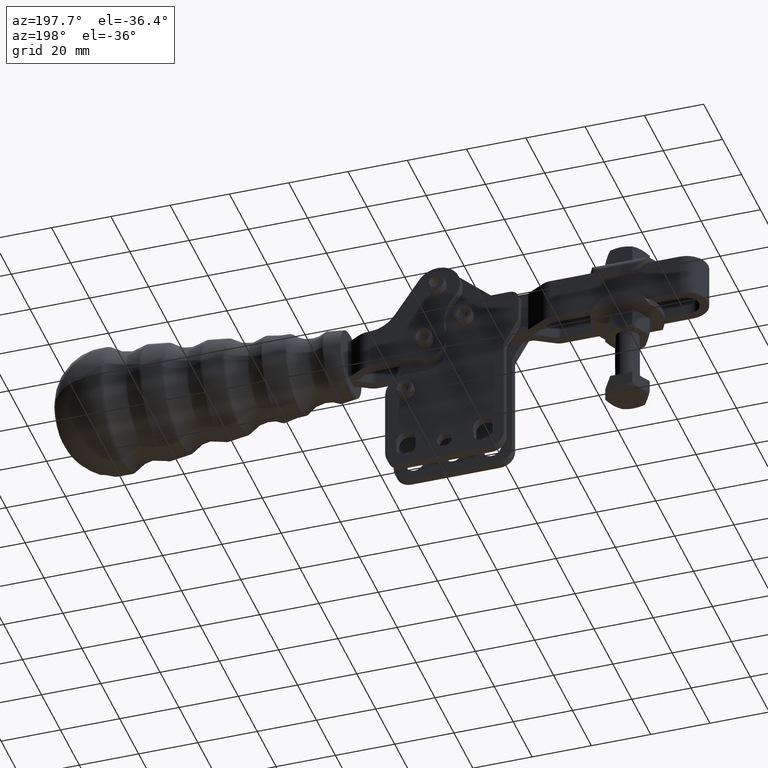
[diagram: clean part render]
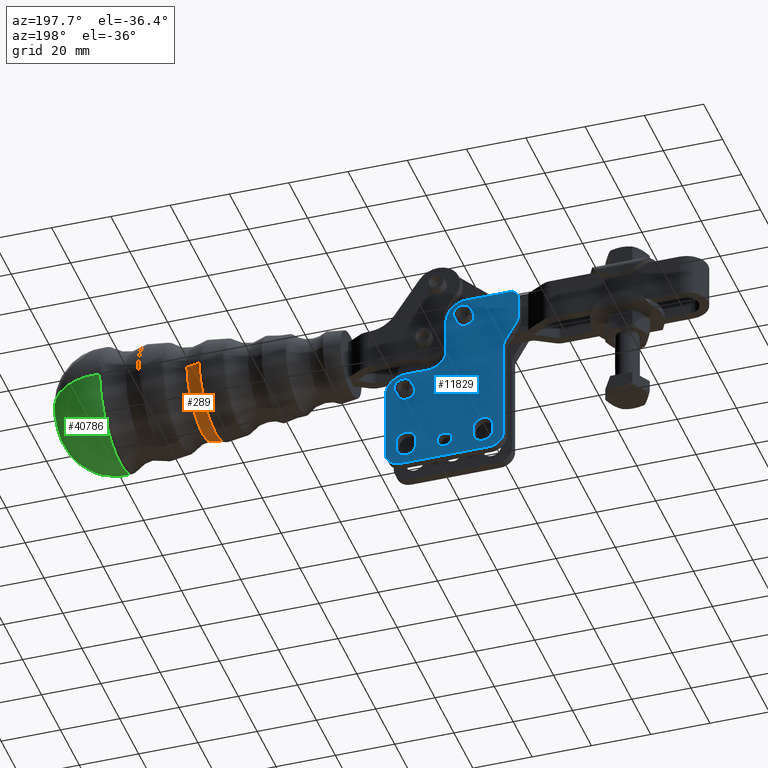
[diagram: same view with three faces highlighted in distinct colors, each labeled with its STEP entity id]
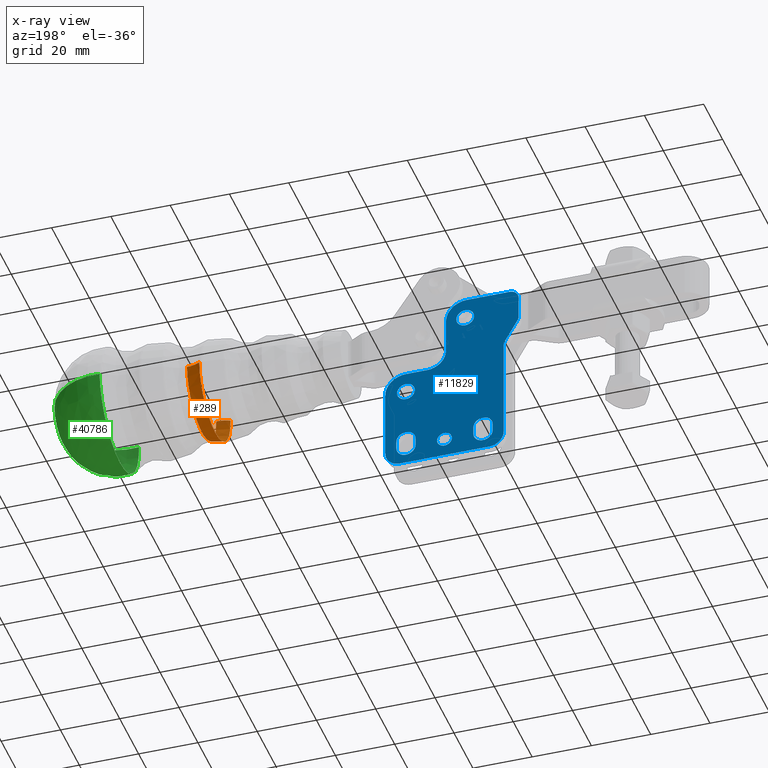
[diagram: x-ray of the same camera — body ghosted, the three highlighted faces saturated]
A machine part, auxiliary view with three faces highlighted in distinct colors.
The next image is the same camera in x-ray (body ghosted, the three faces saturated) — at least one of them is partly hidden behind the body in this view.
Their STEP definitions:

[orange] entity #289 — the highlighted face is a freeform B-spline surface patch.
#60=CARTESIAN_POINT('',(157.993631388735930,-82.821630872737188,-0.144579473590607));
#61=VERTEX_POINT('',#60);
#69=CARTESIAN_POINT('',(157.993631388735930,-49.757288660900720,-0.144579473590599));
#70=VERTEX_POINT('',#69);
#211=CARTESIAN_POINT('',(157.802503196733650,-82.919749444464216,-0.142369400126812));
#212=CARTESIAN_POINT('',(160.080409310927080,-81.719257166994055,-0.168709521922796));
#213=CARTESIAN_POINT('',(162.654790444104660,-81.768322446766689,-0.198477874610673));
#214=CARTESIAN_POINT('',(157.994791443556070,-82.919749444464216,16.486808570913386));
#215=CARTESIAN_POINT('',(160.258816828078920,-81.719257166994055,15.260056422515987));
#216=CARTESIAN_POINT('',(162.833765280095210,-81.768322446766689,15.279350069670171));
#217=CARTESIAN_POINT('',(157.994791443556070,-66.289459766818950,16.486808570913389));
#218=CARTESIAN_POINT('',(160.258816828078920,-66.289459766818950,15.260056422515991));
#219=CARTESIAN_POINT('',(162.833765280095210,-66.289459766818950,15.279350069670173));
#220=CARTESIAN_POINT('',(157.994791443556070,-49.659170089173685,16.486808570913386));
#221=CARTESIAN_POINT('',(160.258816828078920,-50.859662366643846,15.260056422515987));
#222=CARTESIAN_POINT('',(162.833765280095210,-50.810597086871212,15.279350069670171));
#223=CARTESIAN_POINT('',(157.802503196733650,-49.659170089173685,-0.142369400126812));
#224=CARTESIAN_POINT('',(160.080409310927080,-50.859662366643846,-0.168709521922796));
#225=CARTESIAN_POINT('',(162.654790444104660,-50.810597086871212,-0.198477874610672));
#226=CARTESIAN_POINT('',(157.610214949911240,-49.659170089173685,-16.771547371167006));
#227=CARTESIAN_POINT('',(159.902001793775240,-50.859662366643846,-15.597475466361580));
#228=CARTESIAN_POINT('',(162.475815608114120,-50.810597086871212,-15.676305818891512));
#229=CARTESIAN_POINT('',(157.610214949911240,-66.289459766818950,-16.771547371167010));
#230=CARTESIAN_POINT('',(159.902001793775240,-66.289459766818950,-15.597475466361583));
#231=CARTESIAN_POINT('',(162.475815608114120,-66.289459766818950,-15.676305818891517));
#232=CARTESIAN_POINT('',(157.610214949911240,-82.919749444464216,-16.771547371167006));
#233=CARTESIAN_POINT('',(159.902001793775240,-81.719257166994055,-15.597475466361580));
#234=CARTESIAN_POINT('',(162.475815608114120,-81.768322446766689,-15.676305818891512));
#235=CARTESIAN_POINT('',(157.802503196733650,-82.919749444464216,-0.142369400126812));
#236=CARTESIAN_POINT('',(160.080409310927080,-81.719257166994055,-0.168709521922796));
#237=CARTESIAN_POINT('',(162.654790444104660,-81.768322446766689,-0.198477874610673));
#245=(BOUNDED_SURFACE()B_SPLINE_SURFACE(2,2,((#211,#214,#217,#220,#223,#226,#229,#232,#235),(#212,#215,#218,#221,#224,#227,#230,#233,#236),(#213,#216,#219,#222,#225,#228,#231,#234,#237)),.UNSPECIFIED.,.F.,.T.,.U.)B_SPLINE_SURFACE_WITH_KNOTS((3,3),(3,2,2,2,3),(2.656594371723186,3.160648130941323),(0.0,1.570796326794897,3.141592653589793,4.712388980384690,6.283185307179586),.UNSPECIFIED.)GEOMETRIC_REPRESENTATION_ITEM()RATIONAL_B_SPLINE_SURFACE(((1.0,0.707106781186548,1.0,0.707106781186548,1.0,0.707106781186548,1.0,0.707106781186548,1.0),(0.968408973751604,0.684768552301664,0.968408973751604,0.684768552301664,0.968408973751604,0.684768552301664,0.968408973751604,0.684768552301664,0.968408973751604),(1.0,0.707106781186548,1.0,0.707106781186548,1.0,0.707106781186548,1.0,0.707106781186548,1.0)))REPRESENTATION_ITEM('')SURFACE());
#246=CARTESIAN_POINT('',(162.464259939967890,-81.766506945617948,-0.196274712393611));
#247=VERTEX_POINT('',#246);
#248=CARTESIAN_POINT('',(162.464259939967860,-50.812412588019960,-0.196274712393604));
#249=VERTEX_POINT('',#248);
#250=CARTESIAN_POINT('',(162.464259939967860,-66.289459766818950,-0.196274712393607));
#251=DIRECTION('',(0.999933151699302,1.726863E-016,-0.011562531414043));
#252=DIRECTION('',(0.011562531414043,0.0,0.999933151699302));
#253=AXIS2_PLACEMENT_3D('',#250,#251,#252);
#254=CIRCLE('',#253,15.477047178798989);
#255=EDGE_CURVE('',#247,#249,#254,.T.);
#256=ORIENTED_EDGE('',*,*,#255,.F.);
#257=CARTESIAN_POINT('',(162.464259939967860,-91.766506945617948,-0.196274712393614));
#258=DIRECTION('',(0.011562531414043,0.0,0.999933151699302));
#259=DIRECTION('',(0.0,-1.0,0.0));
#260=AXIS2_PLACEMENT_3D('',#257,#258,#259);
#261=CIRCLE('',#260,10.0);
#262=EDGE_CURVE('',#247,#61,#261,.T.);
#263=ORIENTED_EDGE('',*,*,#262,.T.);
#264=CARTESIAN_POINT('',(157.802477640981410,-66.289459766818950,-16.675645431963552));
#265=VERTEX_POINT('',#264);
#266=CARTESIAN_POINT('',(157.993631388735930,-66.289459766818950,-0.144579473590602));
#267=DIRECTION('',(-0.999933151699302,-1.726863E-016,0.011562531414043));
#268=DIRECTION('',(0.011562531414043,-2.514365E-016,0.999933151699302));
#269=AXIS2_PLACEMENT_3D('',#266,#267,#268);
#270=CIRCLE('',#269,16.532171105918227);
#271=EDGE_CURVE('',#265,#61,#270,.T.);
#272=ORIENTED_EDGE('',*,*,#271,.F.);
#273=CARTESIAN_POINT('',(157.993631388735930,-66.289459766818950,-0.144579473590602));
#274=DIRECTION('',(-0.999933151699302,-1.726863E-016,0.011562531414043));
#275=DIRECTION('',(0.011562531414043,-2.514365E-016,0.999933151699302));
#276=AXIS2_PLACEMENT_3D('',#273,#274,#275);
#277=CIRCLE('',#276,16.532171105918227);
#278=EDGE_CURVE('',#70,#265,#277,.T.);
#279=ORIENTED_EDGE('',*,*,#278,.F.);
#280=CARTESIAN_POINT('',(162.464259939967860,-40.812412588019960,-0.196274712393601));
#281=DIRECTION('',(0.011562531414043,0.0,0.999933151699302));
#282=DIRECTION('',(0.0,1.0,0.0));
#283=AXIS2_PLACEMENT_3D('',#280,#281,#282);
#284=CIRCLE('',#283,10.0);
#285=EDGE_CURVE('',#70,#249,#284,.T.);
#286=ORIENTED_EDGE('',*,*,#285,.T.);
#287=EDGE_LOOP('',(#256,#263,#272,#279,#286));
#288=FACE_OUTER_BOUND('',#287,.T.);
#289=ADVANCED_FACE('',(#288),#245,.T.);

[blue] entity #11829 — the highlighted planar face has unit normal (0, 1, 0).
#2083=CARTESIAN_POINT('',(88.601346938202227,-60.259744455112873,-19.295722518266246));
#2084=VERTEX_POINT('',#2083);
#2093=CARTESIAN_POINT('',(94.601346938202241,-60.259744455112880,-19.295722518266494));
#2094=VERTEX_POINT('',#2093);
#2095=CARTESIAN_POINT('',(91.601346938202241,-60.259744455112873,-19.295722518266210));
#2096=DIRECTION('',(0.0,-1.0,0.0));
#2097=DIRECTION('',(1.0,0.0,0.0));
#2098=AXIS2_PLACEMENT_3D('',#2095,#2096,#2097);
#2099=CIRCLE('',#2098,3.000000000000000);
#2100=EDGE_CURVE('',#2094,#2084,#2099,.T.);
#2383=CARTESIAN_POINT('',(68.601346938201914,-60.259744455112866,5.704277481733509));
#2384=VERTEX_POINT('',#2383);
#2393=CARTESIAN_POINT('',(74.601346938201914,-60.259744455112866,5.704277481733519));
#2394=VERTEX_POINT('',#2393);
#2395=CARTESIAN_POINT('',(71.601346938201914,-60.259744455112866,5.704277481733544));
#2396=DIRECTION('',(0.0,-1.0,0.0));
#2397=DIRECTION('',(1.0,0.0,0.0));
#2398=AXIS2_PLACEMENT_3D('',#2395,#2396,#2397);
#2399=CIRCLE('',#2398,3.000000000000000);
#2400=EDGE_CURVE('',#2394,#2384,#2399,.T.);
#8156=CARTESIAN_POINT('',(76.101346938202482,-60.259744455112866,-41.245722518266383));
#8157=VERTEX_POINT('',#8156);
#8166=CARTESIAN_POINT('',(81.101346938202482,-60.259744455112873,-41.245722518266334));
#8167=VERTEX_POINT('',#8166);
#8168=CARTESIAN_POINT('',(78.601346938202482,-60.259744455112873,-41.245722518266355));
#8169=DIRECTION('',(0.0,-1.0,0.0));
#8170=DIRECTION('',(-1.0,0.0,0.0));
#8171=AXIS2_PLACEMENT_3D('',#8168,#8169,#8170);
#8172=CIRCLE('',#8171,2.500000000000000);
#8173=EDGE_CURVE('',#8167,#8157,#8172,.T.);
#8200=CARTESIAN_POINT('',(63.303249899346227,-60.259744455112866,-43.543819557122831));
#8201=VERTEX_POINT('',#8200);
#8217=CARTESIAN_POINT('',(68.851346938202482,-60.259744455112873,-41.245722518266483));
#8218=VERTEX_POINT('',#8217);
#8225=CARTESIAN_POINT('',(65.601346938202482,-60.259744455112873,-41.245722518266525));
#8226=DIRECTION('',(1.469386E-016,1.0,-1.469386E-016));
#8227=DIRECTION('',(0.707106781186557,-2.078026E-016,-0.707106781186538));
#8228=AXIS2_PLACEMENT_3D('',#8225,#8226,#8227);
#8229=CIRCLE('',#8228,3.250000000000000);
#8230=EDGE_CURVE('',#8218,#8201,#8229,.T.);
#8242=CARTESIAN_POINT('',(89.303249899346213,-60.259744455112873,-43.543819557122518));
#8243=VERTEX_POINT('',#8242);
#8259=CARTESIAN_POINT('',(94.851346938202482,-60.259744455112873,-41.245722518266163));
#8260=VERTEX_POINT('',#8259);
#8267=CARTESIAN_POINT('',(91.601346938202468,-60.259744455112873,-41.245722518266206));
#8268=DIRECTION('',(1.469386E-016,1.0,-1.469386E-016));
#8269=DIRECTION('',(0.707106781186557,-2.078026E-016,-0.707106781186538));
#8270=AXIS2_PLACEMENT_3D('',#8267,#8268,#8269);
#8271=CIRCLE('',#8270,3.250000000000000);
#8272=EDGE_CURVE('',#8260,#8243,#8271,.T.);
#8284=CARTESIAN_POINT('',(89.303249899346142,-60.259744455112873,-36.447625479409957));
#8285=VERTEX_POINT('',#8284);
#8301=CARTESIAN_POINT('',(88.351346938202440,-60.259744455112873,-38.745722518266248));
#8302=VERTEX_POINT('',#8301);
#8309=CARTESIAN_POINT('',(91.601346938202454,-60.259744455112873,-38.745722518266206));
#8310=DIRECTION('',(1.469386E-016,1.0,-1.469386E-016));
#8311=DIRECTION('',(-0.707106781186557,2.078026E-016,0.707106781186538));
#8312=AXIS2_PLACEMENT_3D('',#8309,#8310,#8311);
#8313=CIRCLE('',#8312,3.250000000000000);
#8314=EDGE_CURVE('',#8302,#8285,#8313,.T.);
#8326=CARTESIAN_POINT('',(63.303249899346142,-60.259744455112866,-36.447625479410270));
#8327=VERTEX_POINT('',#8326);
#8343=CARTESIAN_POINT('',(62.351346938202454,-60.259744455112866,-38.745722518266561));
#8344=VERTEX_POINT('',#8343);
#8351=CARTESIAN_POINT('',(65.601346938202454,-60.259744455112873,-38.745722518266518));
#8352=DIRECTION('',(1.469386E-016,1.000000000000000,-1.469386E-016));
#8353=DIRECTION('',(-0.707106781186557,2.078026E-016,0.707106781186538));
#8354=AXIS2_PLACEMENT_3D('',#8351,#8352,#8353);
#8355=CIRCLE('',#8354,3.250000000000000);
#8356=EDGE_CURVE('',#8344,#8327,#8355,.T.);
#8366=CARTESIAN_POINT('',(60.065813032269816,-60.259744455112866,-46.081256424199331));
#8367=VERTEX_POINT('',#8366);
#8376=CARTESIAN_POINT('',(63.601346938202568,-60.259744455112866,-47.545722518266551));
#8377=VERTEX_POINT('',#8376);
#8378=CARTESIAN_POINT('',(63.601346938202504,-60.259744455112866,-42.545722518266551));
#8379=DIRECTION('',(-1.393444E-016,-1.000000000000000,-1.393444E-016));
#8380=DIRECTION('',(-0.707106781186539,1.970627E-016,-0.707106781186556));
#8381=AXIS2_PLACEMENT_3D('',#8378,#8379,#8380);
#8382=CIRCLE('',#8381,4.999999999999999);
#8383=EDGE_CURVE('',#8367,#8377,#8382,.T.);
#8408=CARTESIAN_POINT('',(97.136880844135277,-60.259744455112880,-46.081256424198870));
#8409=VERTEX_POINT('',#8408);
#8418=CARTESIAN_POINT('',(98.601346938202497,-60.259744455112880,-42.545722518266118));
#8419=VERTEX_POINT('',#8418);
#8420=CARTESIAN_POINT('',(93.601346938202497,-60.259744455112873,-42.545722518266174));
#8421=DIRECTION('',(-1.469386E-016,-1.0,1.469386E-016));
#8422=DIRECTION('',(0.707106781186557,-2.078026E-016,-0.707106781186539));
#8423=AXIS2_PLACEMENT_3D('',#8420,#8421,#8422);
#8424=CIRCLE('',#8423,4.999999999999999);
#8425=EDGE_CURVE('',#8409,#8419,#8424,.T.);
#8450=CARTESIAN_POINT('',(96.551094406508000,-60.259744455112873,-14.345975049960309));
#8451=VERTEX_POINT('',#8450);
#8460=CARTESIAN_POINT('',(91.601346938202127,-60.259744455112873,-12.295722518266196));
#8461=VERTEX_POINT('',#8460);
#8462=CARTESIAN_POINT('',(91.601346938202227,-60.259744455112873,-19.295722518266203));
#8463=DIRECTION('',(-1.393444E-016,-1.0,-1.393444E-016));
#8464=DIRECTION('',(0.707106781186539,-1.970627E-016,0.707106781186556));
#8465=AXIS2_PLACEMENT_3D('',#8462,#8463,#8464);
#8466=CIRCLE('',#8465,7.000000000000001);
#8467=EDGE_CURVE('',#8451,#8461,#8466,.T.);
#8494=CARTESIAN_POINT('',(79.931929555786198,-60.259744455112866,-10.465139900682278));
#8495=VERTEX_POINT('',#8494);
#8511=CARTESIAN_POINT('',(84.351346938202141,-60.259744455112873,-12.295722518266295));
#8512=VERTEX_POINT('',#8511);
#8519=CARTESIAN_POINT('',(84.351346938202056,-60.259744455112873,-6.045722518266294));
#8520=DIRECTION('',(1.393444E-016,1.000000000000000,1.393444E-016));
#8521=DIRECTION('',(-0.707106781186538,1.970627E-016,-0.707106781186556));
#8522=AXIS2_PLACEMENT_3D('',#8519,#8520,#8521);
#8523=CIRCLE('',#8522,6.249999999999999);
#8524=EDGE_CURVE('',#8512,#8495,#8523,.T.);
#8536=CARTESIAN_POINT('',(58.499124417069282,-60.259744455112866,-7.323112960252402));
#8537=VERTEX_POINT('',#8536);
#8553=CARTESIAN_POINT('',(58.199423149555372,-60.259744455112866,-6.599570095559972));
#8554=VERTEX_POINT('',#8553);
#8561=CARTESIAN_POINT('',(55.601346938202084,-60.259744455112866,-8.099570095560003));
#8562=DIRECTION('',(2.652071E-016,1.0,7.106203E-017));
#8563=DIRECTION('',(0.965925826289065,-2.745626E-016,0.258819045102533));
#8564=AXIS2_PLACEMENT_3D('',#8561,#8562,#8563);
#8565=CIRCLE('',#8564,3.000000000000001);
#8566=EDGE_CURVE('',#8554,#8537,#8565,.T.);
#8576=CARTESIAN_POINT('',(53.703569459334759,-60.259744455112866,1.391921961563524));
#8577=VERTEX_POINT('',#8576);
#8586=CARTESIAN_POINT('',(54.003270726848655,-60.259744455112866,0.668379096871092));
#8587=VERTEX_POINT('',#8586);
#8588=CARTESIAN_POINT('',(56.601346938201957,-60.259744455112866,2.168379096871123));
#8589=DIRECTION('',(-2.652071E-016,-1.0,-7.106203E-017));
#8590=DIRECTION('',(-0.965925826289065,2.745626E-016,-0.258819045102533));
#8591=AXIS2_PLACEMENT_3D('',#8588,#8589,#8590);
#8592=CIRCLE('',#8591,3.000000000000001);
#8593=EDGE_CURVE('',#8577,#8587,#8592,.T.);
#8620=CARTESIAN_POINT('',(54.480026594642190,-60.259744455112866,11.825597825292979));
#8621=VERTEX_POINT('',#8620);
#8637=CARTESIAN_POINT('',(56.601346938201829,-60.259744455112873,12.704277481733364));
#8638=VERTEX_POINT('',#8637);
#8645=CARTESIAN_POINT('',(56.601346938201864,-60.259744455112866,9.704277481733366));
#8646=DIRECTION('',(-1.469386E-016,-1.0,1.469386E-016));
#8647=DIRECTION('',(-0.707106781186558,2.078026E-016,0.707106781186537));
#8648=AXIS2_PLACEMENT_3D('',#8645,#8646,#8647);
#8649=CIRCLE('',#8648,3.000000000000000);
#8650=EDGE_CURVE('',#8638,#8621,#8649,.T.);
#8662=CARTESIAN_POINT('',(76.051094406507687,-60.259744455112866,10.654024950039444));
#8663=VERTEX_POINT('',#8662);
#8679=CARTESIAN_POINT('',(78.101346938201914,-60.259744455112873,5.704277481733637));
#8680=VERTEX_POINT('',#8679);
#8687=CARTESIAN_POINT('',(71.101346938201914,-60.259744455112866,5.704277481733548));
#8688=DIRECTION('',(-1.393444E-016,-1.000000000000000,-1.393444E-016));
#8689=DIRECTION('',(0.707106781186539,-1.970627E-016,0.707106781186556));
#8690=AXIS2_PLACEMENT_3D('',#8687,#8688,#8689);
#8691=CIRCLE('',#8690,7.0);
#8692=EDGE_CURVE('',#8680,#8663,#8691,.T.);
#11335=CARTESIAN_POINT('',(71.101346938201829,-60.259744455112873,12.704277481733541));
#11336=VERTEX_POINT('',#11335);
#11343=CARTESIAN_POINT('',(71.101346938201829,-60.259744455112873,12.704277481733541));
#11344=DIRECTION('',(-1.0,0.0,0.0));
#11345=VECTOR('',#11344,14.500000000000000);
#11346=LINE('',#11343,#11345);
#11347=EDGE_CURVE('',#11336,#8638,#11346,.T.);
#11375=CARTESIAN_POINT('',(78.101346938202056,-60.259744455112873,-6.045722518266374));
#11376=VERTEX_POINT('',#11375);
#11383=CARTESIAN_POINT('',(78.101346938201914,-60.259744455112873,5.704277481733637));
#11384=DIRECTION('',(0.0,0.0,-1.0));
#11385=VECTOR('',#11384,11.750000000000011);
#11386=LINE('',#11383,#11385);
#11387=EDGE_CURVE('',#8680,#11376,#11386,.T.);
#11421=CARTESIAN_POINT('',(71.101346938201914,-60.259744455112866,5.704277481733548));
#11422=DIRECTION('',(-1.393444E-016,-1.000000000000000,-1.393444E-016));
#11423=DIRECTION('',(0.707106781186539,-1.970627E-016,0.707106781186556));
#11424=AXIS2_PLACEMENT_3D('',#11421,#11422,#11423);
#11425=CIRCLE('',#11424,7.0);
#11426=EDGE_CURVE('',#8663,#11336,#11425,.T.);
#11445=CARTESIAN_POINT('',(53.601346938201857,-60.259744455112852,9.704277481733330));
#11446=VERTEX_POINT('',#11445);
#11447=CARTESIAN_POINT('',(56.601346938201864,-60.259744455112866,9.704277481733366));
#11448=DIRECTION('',(-1.469386E-016,-1.0,1.469386E-016));
#11449=DIRECTION('',(-0.707106781186558,2.078026E-016,0.707106781186537));
#11450=AXIS2_PLACEMENT_3D('',#11447,#11448,#11449);
#11451=CIRCLE('',#11450,3.000000000000000);
#11452=EDGE_CURVE('',#8621,#11446,#11451,.T.);
#11479=CARTESIAN_POINT('',(53.601346938201957,-60.259744455112852,2.168379096871087));
#11480=VERTEX_POINT('',#11479);
#11494=CARTESIAN_POINT('',(53.601346938201857,-60.259744455112852,9.704277481733330));
#11495=DIRECTION('',(0.0,0.0,-1.0));
#11496=VECTOR('',#11495,7.535898384862243);
#11497=LINE('',#11494,#11496);
#11498=EDGE_CURVE('',#11446,#11480,#11497,.T.);
#11517=CARTESIAN_POINT('',(56.601346938201957,-60.259744455112866,2.168379096871123));
#11518=DIRECTION('',(-2.652071E-016,-1.0,-7.106203E-017));
#11519=DIRECTION('',(-0.965925826289065,2.745626E-016,-0.258819045102533));
#11520=AXIS2_PLACEMENT_3D('',#11517,#11518,#11519);
#11521=CIRCLE('',#11520,3.000000000000001);
#11522=EDGE_CURVE('',#11480,#8577,#11521,.T.);
#11548=CARTESIAN_POINT('',(58.199423149555372,-60.259744455112866,-6.599570095559972));
#11549=DIRECTION('',(-0.500000000000011,0.0,0.866025403784432));
#11550=VECTOR('',#11549,8.392304845413257);
#11551=LINE('',#11548,#11550);
#11552=EDGE_CURVE('',#8554,#8587,#11551,.T.);
#11563=CARTESIAN_POINT('',(58.601346938202084,-60.259744455112866,-8.099570095559967));
#11564=VERTEX_POINT('',#11563);
#11565=CARTESIAN_POINT('',(55.601346938202084,-60.259744455112866,-8.099570095560003));
#11566=DIRECTION('',(2.652071E-016,1.0,7.106203E-017));
#11567=DIRECTION('',(0.965925826289065,-2.745626E-016,0.258819045102533));
#11568=AXIS2_PLACEMENT_3D('',#11565,#11566,#11567);
#11569=CIRCLE('',#11568,3.000000000000001);
#11570=EDGE_CURVE('',#8537,#11564,#11569,.T.);
#11596=CARTESIAN_POINT('',(84.351346938202056,-60.259744455112873,-6.045722518266294));
#11597=DIRECTION('',(1.393444E-016,1.000000000000000,1.393444E-016));
#11598=DIRECTION('',(-0.707106781186538,1.970627E-016,-0.707106781186556));
#11599=AXIS2_PLACEMENT_3D('',#11596,#11597,#11598);
#11600=CIRCLE('',#11599,6.249999999999999);
#11601=EDGE_CURVE('',#8495,#11376,#11600,.T.);
#11620=CARTESIAN_POINT('',(84.351346938202141,-60.259744455112873,-12.295722518266295));
#11621=DIRECTION('',(1.0,0.0,0.0));
#11622=VECTOR('',#11621,7.249999999999986);
#11623=LINE('',#11620,#11622);
#11624=EDGE_CURVE('',#8512,#8461,#11623,.T.);
#11651=CARTESIAN_POINT('',(98.601346938202212,-60.259744455112880,-19.295722518266118));
#11652=VERTEX_POINT('',#11651);
#11659=CARTESIAN_POINT('',(91.601346938202227,-60.259744455112873,-19.295722518266203));
#11660=DIRECTION('',(-1.393444E-016,-1.0,-1.393444E-016));
#11661=DIRECTION('',(0.707106781186539,-1.970627E-016,0.707106781186556));
#11662=AXIS2_PLACEMENT_3D('',#11659,#11660,#11661);
#11663=CIRCLE('',#11662,7.000000000000001);
#11664=EDGE_CURVE('',#11652,#8451,#11663,.T.);
#11669=CARTESIAN_POINT('',(78.601346938202084,-60.259744455112873,-8.920722518266363));
#11670=DIRECTION('',(0.0,1.0,0.0));
#11671=DIRECTION('',(0.0,0.0,1.0));
#11672=AXIS2_PLACEMENT_3D('',#11669,#11670,#11671);
#11673=PLANE('',#11672);
#11674=CARTESIAN_POINT('',(58.601346938202497,-60.259744455112866,-42.545722518266601));
#11675=VERTEX_POINT('',#11674);
#11676=CARTESIAN_POINT('',(63.601346938202504,-60.259744455112866,-42.545722518266551));
#11677=DIRECTION('',(-1.393444E-016,-1.000000000000000,-1.393444E-016));
#11678=DIRECTION('',(-0.707106781186539,1.970627E-016,-0.707106781186556));
#11679=AXIS2_PLACEMENT_3D('',#11676,#11677,#11678);
#11680=CIRCLE('',#11679,4.999999999999999);
#11681=EDGE_CURVE('',#11675,#8367,#11680,.T.);
#11682=ORIENTED_EDGE('',*,*,#11681,.F.);
#11683=CARTESIAN_POINT('',(58.601346938202497,-60.259744455112866,-42.545722518266601));
#11684=DIRECTION('',(0.0,0.0,1.0));
#11685=VECTOR('',#11684,34.446152422706632);
#11686=LINE('',#11683,#11685);
#11687=EDGE_CURVE('',#11675,#11564,#11686,.T.);
#11688=ORIENTED_EDGE('',*,*,#11687,.T.);
#11689=ORIENTED_EDGE('',*,*,#11570,.F.);
#11690=ORIENTED_EDGE('',*,*,#8566,.F.);
#11691=ORIENTED_EDGE('',*,*,#11552,.T.);
#11692=ORIENTED_EDGE('',*,*,#8593,.F.);
#11693=ORIENTED_EDGE('',*,*,#11522,.F.);
#11694=ORIENTED_EDGE('',*,*,#11498,.F.);
#11695=ORIENTED_EDGE('',*,*,#11452,.F.);
#11696=ORIENTED_EDGE('',*,*,#8650,.F.);
#11697=ORIENTED_EDGE('',*,*,#11347,.F.);
#11698=ORIENTED_EDGE('',*,*,#11426,.F.);
#11699=ORIENTED_EDGE('',*,*,#8692,.F.);
#11700=ORIENTED_EDGE('',*,*,#11387,.T.);
#11701=ORIENTED_EDGE('',*,*,#11601,.F.);
#11702=ORIENTED_EDGE('',*,*,#8524,.F.);
#11703=ORIENTED_EDGE('',*,*,#11624,.T.);
#11704=ORIENTED_EDGE('',*,*,#8467,.F.);
#11705=ORIENTED_EDGE('',*,*,#11664,.F.);
#11706=CARTESIAN_POINT('',(98.601346938202497,-60.259744455112880,-42.545722518266118));
#11707=DIRECTION('',(0.0,0.0,1.0));
#11708=VECTOR('',#11707,23.250000000000000);
#11709=LINE('',#11706,#11708);
#11710=EDGE_CURVE('',#8419,#11652,#11709,.T.);
#11711=ORIENTED_EDGE('',*,*,#11710,.F.);
#11712=ORIENTED_EDGE('',*,*,#8425,.F.);
#11713=CARTESIAN_POINT('',(93.601346938202568,-60.259744455112873,-47.545722518266174));
#11714=VERTEX_POINT('',#11713);
#11715=CARTESIAN_POINT('',(93.601346938202497,-60.259744455112873,-42.545722518266174));
#11716=DIRECTION('',(-1.469386E-016,-1.0,1.469386E-016));
#11717=DIRECTION('',(0.707106781186557,-2.078026E-016,-0.707106781186539));
#11718=AXIS2_PLACEMENT_3D('',#11715,#11716,#11717);
#11719=CIRCLE('',#11718,4.999999999999999);
#11720=EDGE_CURVE('',#11714,#8409,#11719,.T.);
#11721=ORIENTED_EDGE('',*,*,#11720,.F.);
#11722=CARTESIAN_POINT('',(93.601346938202568,-60.259744455112873,-47.545722518266174));
#11723=DIRECTION('',(-1.0,0.0,0.0));
#11724=VECTOR('',#11723,30.0);
#11725=LINE('',#11722,#11724);
#11726=EDGE_CURVE('',#11714,#8377,#11725,.T.);
#11727=ORIENTED_EDGE('',*,*,#11726,.T.);
#11728=ORIENTED_EDGE('',*,*,#8383,.F.);
#11729=EDGE_LOOP('',(#11682,#11688,#11689,#11690,#11691,#11692,#11693,#11694,#11695,#11696,#11697,#11698,#11699,#11700,#11701,#11702,#11703,#11704,#11705,#11711,#11712,#11721,#11727,#11728));
#11730=FACE_OUTER_BOUND('',#11729,.T.);
#11731=ORIENTED_EDGE('',*,*,#8173,.T.);
#11732=CARTESIAN_POINT('',(78.601346938202482,-60.259744455112873,-41.245722518266355));
#11733=DIRECTION('',(0.0,-1.0,0.0));
#11734=DIRECTION('',(-1.0,0.0,0.0));
#11735=AXIS2_PLACEMENT_3D('',#11732,#11733,#11734);
#11736=CIRCLE('',#11735,2.500000000000000);
#11737=EDGE_CURVE('',#8157,#8167,#11736,.T.);
#11738=ORIENTED_EDGE('',*,*,#11737,.T.);
#11739=EDGE_LOOP('',(#11731,#11738));
#11740=FACE_BOUND('',#11739,.T.);
#11741=CARTESIAN_POINT('',(88.351346938202482,-60.259744455112873,-41.245722518266241));
#11742=VERTEX_POINT('',#11741);
#11743=CARTESIAN_POINT('',(88.351346938202440,-60.259744455112873,-38.745722518266248));
#11744=DIRECTION('',(0.0,0.0,-1.0));
#11745=VECTOR('',#11744,2.499999999999993);
#11746=LINE('',#11743,#11745);
#11747=EDGE_CURVE('',#8302,#11742,#11746,.T.);
#11748=ORIENTED_EDGE('',*,*,#11747,.T.);
#11749=CARTESIAN_POINT('',(91.601346938202468,-60.259744455112873,-41.245722518266206));
#11750=DIRECTION('',(1.469386E-016,1.0,-1.469386E-016));
#11751=DIRECTION('',(0.707106781186557,-2.078026E-016,-0.707106781186538));
#11752=AXIS2_PLACEMENT_3D('',#11749,#11750,#11751);
#11753=CIRCLE('',#11752,3.250000000000000);
#11754=EDGE_CURVE('',#8243,#11742,#11753,.T.);
#11755=ORIENTED_EDGE('',*,*,#11754,.F.);
#11756=ORIENTED_EDGE('',*,*,#8272,.F.);
#11757=CARTESIAN_POINT('',(94.851346938202440,-60.259744455112873,-38.745722518266163));
#11758=VERTEX_POINT('',#11757);
#11759=CARTESIAN_POINT('',(94.851346938202482,-60.259744455112873,-41.245722518266163));
#11760=DIRECTION('',(0.0,0.0,1.0));
#11761=VECTOR('',#11760,2.500000000000000);
#11762=LINE('',#11759,#11761);
#11763=EDGE_CURVE('',#8260,#11758,#11762,.T.);
#11764=ORIENTED_EDGE('',*,*,#11763,.T.);
#11765=CARTESIAN_POINT('',(91.601346938202454,-60.259744455112873,-38.745722518266206));
#11766=DIRECTION('',(1.469386E-016,1.0,-1.469386E-016));
#11767=DIRECTION('',(-0.707106781186557,2.078026E-016,0.707106781186538));
#11768=AXIS2_PLACEMENT_3D('',#11765,#11766,#11767);
#11769=CIRCLE('',#11768,3.250000000000000);
#11770=EDGE_CURVE('',#8285,#11758,#11769,.T.);
#11771=ORIENTED_EDGE('',*,*,#11770,.F.);
#11772=ORIENTED_EDGE('',*,*,#8314,.F.);
#11773=EDGE_LOOP('',(#11748,#11755,#11756,#11764,#11771,#11772));
#11774=FACE_BOUND('',#11773,.T.);
#11775=CARTESIAN_POINT('',(62.351346938202482,-60.259744455112866,-41.245722518266561));
#11776=VERTEX_POINT('',#11775);
#11777=CARTESIAN_POINT('',(62.351346938202454,-60.259744455112866,-38.745722518266561));
#11778=DIRECTION('',(0.0,0.0,-1.0));
#11779=VECTOR('',#11778,2.500000000000000);
#11780=LINE('',#11777,#11779);
#11781=EDGE_CURVE('',#8344,#11776,#11780,.T.);
#11782=ORIENTED_EDGE('',*,*,#11781,.T.);
#11783=CARTESIAN_POINT('',(65.601346938202482,-60.259744455112873,-41.245722518266525));
#11784=DIRECTION('',(1.469386E-016,1.0,-1.469386E-016));
#11785=DIRECTION('',(0.707106781186557,-2.078026E-016,-0.707106781186538));
#11786=AXIS2_PLACEMENT_3D('',#11783,#11784,#11785);
#11787=CIRCLE('',#11786,3.250000000000000);
#11788=EDGE_CURVE('',#8201,#11776,#11787,.T.);
#11789=ORIENTED_EDGE('',*,*,#11788,.F.);
#11790=ORIENTED_EDGE('',*,*,#8230,.F.);
#11791=CARTESIAN_POINT('',(68.851346938202454,-60.259744455112873,-38.745722518266476));
#11792=VERTEX_POINT('',#11791);
#11793=CARTESIAN_POINT('',(68.851346938202482,-60.259744455112873,-41.245722518266483));
#11794=DIRECTION('',(0.0,0.0,1.0));
#11795=VECTOR('',#11794,2.500000000000007);
#11796=LINE('',#11793,#11795);
#11797=EDGE_CURVE('',#8218,#11792,#11796,.T.);
#11798=ORIENTED_EDGE('',*,*,#11797,.T.);
#11799=CARTESIAN_POINT('',(65.601346938202454,-60.259744455112873,-38.745722518266518));
#11800=DIRECTION('',(1.469386E-016,1.000000000000000,-1.469386E-016));
#11801=DIRECTION('',(-0.707106781186557,2.078026E-016,0.707106781186538));
#11802=AXIS2_PLACEMENT_3D('',#11799,#11800,#11801);
#11803=CIRCLE('',#11802,3.250000000000000);
#11804=EDGE_CURVE('',#8327,#11792,#11803,.T.);
#11805=ORIENTED_EDGE('',*,*,#11804,.F.);
#11806=ORIENTED_EDGE('',*,*,#8356,.F.);
#11807=EDGE_LOOP('',(#11782,#11789,#11790,#11798,#11805,#11806));
#11808=FACE_BOUND('',#11807,.T.);
#11809=CARTESIAN_POINT('',(91.601346938202241,-60.259744455112873,-19.295722518266210));
#11810=DIRECTION('',(0.0,-1.0,0.0));
#11811=DIRECTION('',(1.0,0.0,0.0));
#11812=AXIS2_PLACEMENT_3D('',#11809,#11810,#11811);
#11813=CIRCLE('',#11812,3.000000000000000);
#11814=EDGE_CURVE('',#2084,#2094,#11813,.T.);
#11815=ORIENTED_EDGE('',*,*,#11814,.T.);
#11816=ORIENTED_EDGE('',*,*,#2100,.T.);
#11817=EDGE_LOOP('',(#11815,#11816));
#11818=FACE_BOUND('',#11817,.T.);
#11819=CARTESIAN_POINT('',(71.601346938201914,-60.259744455112866,5.704277481733544));
#11820=DIRECTION('',(0.0,-1.0,0.0));
#11821=DIRECTION('',(1.0,0.0,0.0));
#11822=AXIS2_PLACEMENT_3D('',#11819,#11820,#11821);
#11823=CIRCLE('',#11822,3.000000000000000);
#11824=EDGE_CURVE('',#2384,#2394,#11823,.T.);
#11825=ORIENTED_EDGE('',*,*,#11824,.T.);
#11826=ORIENTED_EDGE('',*,*,#2400,.T.);
#11827=EDGE_LOOP('',(#11825,#11826));
#11828=FACE_BOUND('',#11827,.T.);
#11829=ADVANCED_FACE('',(#11730,#11740,#11774,#11808,#11818,#11828),#11673,.T.);

[green] entity #40786 — the highlighted face is a freeform B-spline surface patch.
#1073=CARTESIAN_POINT('',(189.999903804995000,-66.289459766818936,-21.343371277100999));
#1074=VERTEX_POINT('',#1073);
#1081=CARTESIAN_POINT('',(190.240720129043380,-87.116760936861027,-0.517462376750276));
#1082=VERTEX_POINT('',#1081);
#1083=CARTESIAN_POINT('',(190.240720129043380,-66.289459766818950,-0.517462376750270));
#1084=DIRECTION('',(-0.999933151699302,-1.726863E-016,0.011562531414043));
#1085=DIRECTION('',(-0.011562531414043,1.289759E-016,-0.999933151699302));
#1086=AXIS2_PLACEMENT_3D('',#1083,#1084,#1085);
#1087=CIRCLE('',#1086,20.827301170042073);
#1088=EDGE_CURVE('',#1074,#1082,#1087,.T.);
#1171=CARTESIAN_POINT('',(210.069113070897370,-66.289459766818936,-0.746744120125368));
#1172=VERTEX_POINT('',#1171);
#1173=CARTESIAN_POINT('',(192.313187489315310,-69.236483960819896,-0.541426947698839));
#1174=DIRECTION('',(0.011562531414043,0.0,0.999933151699302));
#1175=DIRECTION('',(0.0,-1.0,0.0));
#1176=AXIS2_PLACEMENT_3D('',#1173,#1174,#1175);
#1177=CIRCLE('',#1176,18.000000000000004);
#1178=EDGE_CURVE('',#1082,#1172,#1177,.T.);
#1180=CARTESIAN_POINT('',(190.240720129043380,-45.462158596776874,-0.517462376750265));
#1181=VERTEX_POINT('',#1180);
#1182=CARTESIAN_POINT('',(192.313187489315310,-63.342435572818012,-0.541426947698837));
#1183=DIRECTION('',(0.011562531414043,0.0,0.999933151699302));
#1184=DIRECTION('',(0.0,1.0,0.0));
#1185=AXIS2_PLACEMENT_3D('',#1182,#1183,#1184);
#1186=CIRCLE('',#1185,18.000000000000004);
#1187=EDGE_CURVE('',#1172,#1181,#1186,.T.);
#40721=CARTESIAN_POINT('',(210.069113070897370,-66.289459766818965,-0.746744120125369));
#40722=CARTESIAN_POINT('',(211.551330627425810,-75.221067346546747,-0.763883452920449));
#40723=CARTESIAN_POINT('',(205.264678306429350,-81.735942227014903,-0.691188978467677));
#40724=CARTESIAN_POINT('',(198.978025985432910,-88.250817107483044,-0.618494504014904));
#40725=CARTESIAN_POINT('',(189.999936000242970,-87.087202491129489,-0.514678116573957));
#40726=CARTESIAN_POINT('',(210.069113070897370,-66.289459766818965,-0.746744120125383));
#40727=CARTESIAN_POINT('',(211.448058634207310,-75.221067346546747,-9.694893969859038));
#40728=CARTESIAN_POINT('',(205.086077867746870,-81.735942227014903,-16.136638867559398));
#40729=CARTESIAN_POINT('',(198.724097101286450,-88.250817107483044,-22.578383765259748));
#40730=CARTESIAN_POINT('',(189.759461446651950,-87.087202491129489,-21.311030547125018));
#40731=CARTESIAN_POINT('',(210.069113070897370,-66.289459766818950,-0.746744120125383));
#40732=CARTESIAN_POINT('',(211.448058634207310,-66.289459766818950,-9.694893969859038));
#40733=CARTESIAN_POINT('',(205.086077867746870,-66.289459766818950,-16.136638867559398));
#40734=CARTESIAN_POINT('',(198.724097101286450,-66.289459766818950,-22.578383765259744));
#40735=CARTESIAN_POINT('',(189.759461446651950,-66.289459766818950,-21.311030547125014));
#40736=CARTESIAN_POINT('',(210.069113070897370,-66.289459766818936,-0.746744120125383));
#40737=CARTESIAN_POINT('',(211.448058634207310,-57.357852187091154,-9.694893969859034));
#40738=CARTESIAN_POINT('',(205.086077867746870,-50.842977306622998,-16.136638867559391));
#40739=CARTESIAN_POINT('',(198.724097101286450,-44.328102426154857,-22.578383765259733));
#40740=CARTESIAN_POINT('',(189.759461446651950,-45.491717042508412,-21.311030547125004));
#40741=CARTESIAN_POINT('',(210.069113070897370,-66.289459766818936,-0.746744120125369));
#40742=CARTESIAN_POINT('',(211.551330627425810,-57.357852187091154,-0.763883452920445));
#40743=CARTESIAN_POINT('',(205.264678306429350,-50.842977306622998,-0.691188978467669));
#40744=CARTESIAN_POINT('',(198.978025985432910,-44.328102426154857,-0.618494504014893));
#40745=CARTESIAN_POINT('',(189.999936000242970,-45.491717042508412,-0.514678116573946));
#40746=CARTESIAN_POINT('',(210.069113070897370,-66.289459766818936,-0.746744120125355));
#40747=CARTESIAN_POINT('',(211.654602620644280,-57.357852187091154,8.167127064018143));
#40748=CARTESIAN_POINT('',(205.443278745111850,-50.842977306622998,14.754260910624055));
#40749=CARTESIAN_POINT('',(199.231954869579370,-44.328102426154857,21.341394757229953));
#40750=CARTESIAN_POINT('',(190.240410553833980,-45.491717042508412,20.281674313977117));
#40751=CARTESIAN_POINT('',(210.069113070897370,-66.289459766818950,-0.746744120125354));
#40752=CARTESIAN_POINT('',(211.654602620644310,-66.289459766818950,8.167127064018143));
#40753=CARTESIAN_POINT('',(205.443278745111830,-66.289459766818950,14.754260910624055));
#40754=CARTESIAN_POINT('',(199.231954869579370,-66.289459766818950,21.341394757229953));
#40755=CARTESIAN_POINT('',(190.240410553833980,-66.289459766818950,20.281674313977113));
#40756=CARTESIAN_POINT('',(210.069113070897370,-66.289459766818965,-0.746744120125354));
#40757=CARTESIAN_POINT('',(211.654602620644280,-75.221067346546747,8.167127064018139));
#40758=CARTESIAN_POINT('',(205.443278745111850,-81.735942227014903,14.754260910624048));
#40759=CARTESIAN_POINT('',(199.231954869579370,-88.250817107483044,21.341394757229939));
#40760=CARTESIAN_POINT('',(190.240410553833980,-87.087202491129489,20.281674313977103));
#40761=CARTESIAN_POINT('',(210.069113070897370,-66.289459766818965,-0.746744120125369));
#40762=CARTESIAN_POINT('',(211.551330627425810,-75.221067346546747,-0.763883452920449));
#40763=CARTESIAN_POINT('',(205.264678306429350,-81.735942227014903,-0.691188978467677));
#40764=CARTESIAN_POINT('',(198.978025985432910,-88.250817107483044,-0.618494504014904));
#40765=CARTESIAN_POINT('',(189.999936000242970,-87.087202491129489,-0.514678116573957));
#40773=(BOUNDED_SURFACE()B_SPLINE_SURFACE(2,2,((#40721,#40726,#40731,#40736,#40741,#40746,#40751,#40756,#40761),(#40722,#40727,#40732,#40737,#40742,#40747,#40752,#40757,#40762),(#40723,#40728,#40733,#40738,#40743,#40748,#40753,#40758,#40763),(#40724,#40729,#40734,#40739,#40744,#40749,#40754,#40759,#40764),(#40725,#40730,#40735,#40740,#40745,#40750,#40755,#40760,#40765)),.UNSPECIFIED.,.F.,.T.,.U.)B_SPLINE_SURFACE_WITH_KNOTS((3,2,3),(3,2,2,2,3),(-1.735260305660283,-0.803190631345856,0.128879042968571),(0.0,1.570796326794897,3.141592653589793,4.712388980384690,6.283185307179586),.UNSPECIFIED.)GEOMETRIC_REPRESENTATION_ITEM()RATIONAL_B_SPLINE_SURFACE(((1.0,0.707106781186548,1.0,0.707106781186548,1.0,0.707106781186548,1.0,0.707106781186548,1.0),(0.893357042521119,0.631698822787442,0.893357042521119,0.631698822787442,0.893357042521119,0.631698822787442,0.893357042521119,0.631698822787442,0.893357042521119),(1.0,0.707106781186548,1.0,0.707106781186548,1.0,0.707106781186548,1.0,0.707106781186548,1.0),(0.893357042521140,0.631698822787457,0.893357042521140,0.631698822787457,0.893357042521140,0.631698822787457,0.893357042521140,0.631698822787457,0.893357042521140),(1.0,0.707106781186548,1.0,0.707106781186548,1.0,0.707106781186548,1.0,0.707106781186548,1.0)))REPRESENTATION_ITEM('')SURFACE());
#40774=ORIENTED_EDGE('',*,*,#1178,.F.);
#40775=ORIENTED_EDGE('',*,*,#1088,.F.);
#40776=CARTESIAN_POINT('',(190.240720129043380,-66.289459766818950,-0.517462376750270));
#40777=DIRECTION('',(-0.999933151699302,-1.726863E-016,0.011562531414043));
#40778=DIRECTION('',(-0.011562531414043,1.289759E-016,-0.999933151699302));
#40779=AXIS2_PLACEMENT_3D('',#40776,#40777,#40778);
#40780=CIRCLE('',#40779,20.827301170042073);
#40781=EDGE_CURVE('',#1181,#1074,#40780,.T.);
#40782=ORIENTED_EDGE('',*,*,#40781,.F.);
#40783=ORIENTED_EDGE('',*,*,#1187,.F.);
#40784=EDGE_LOOP('',(#40774,#40775,#40782,#40783));
#40785=FACE_OUTER_BOUND('',#40784,.T.);
#40786=ADVANCED_FACE('',(#40785),#40773,.T.);